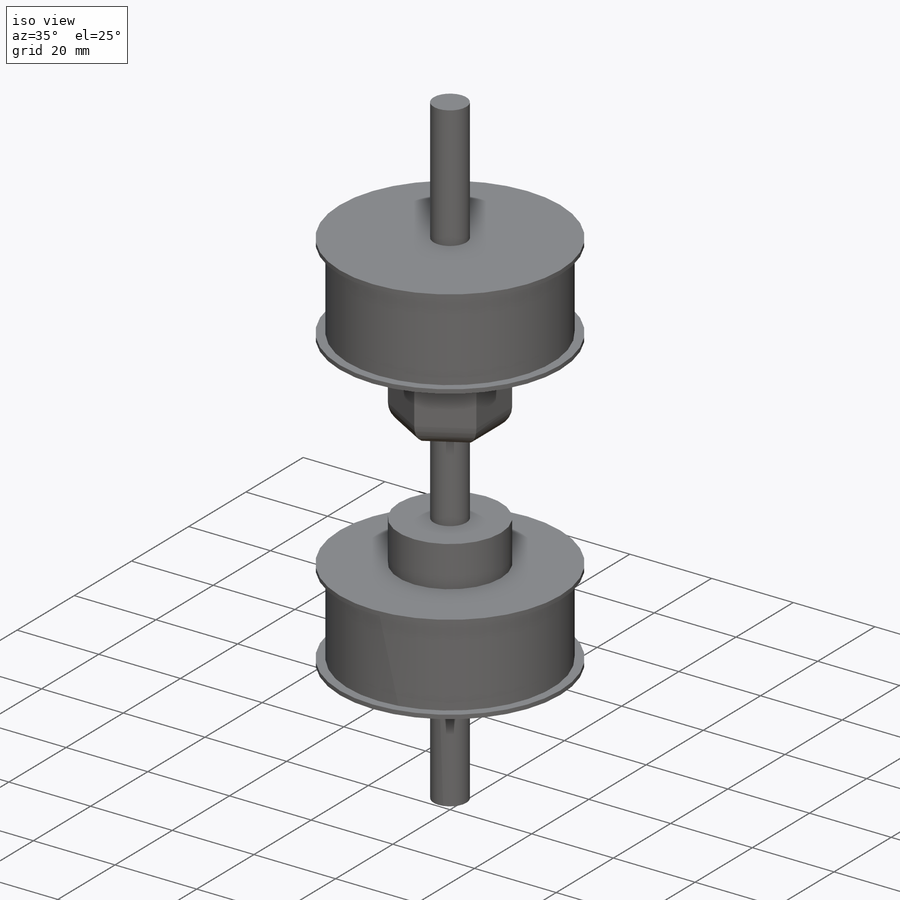
[diagram: iso view]
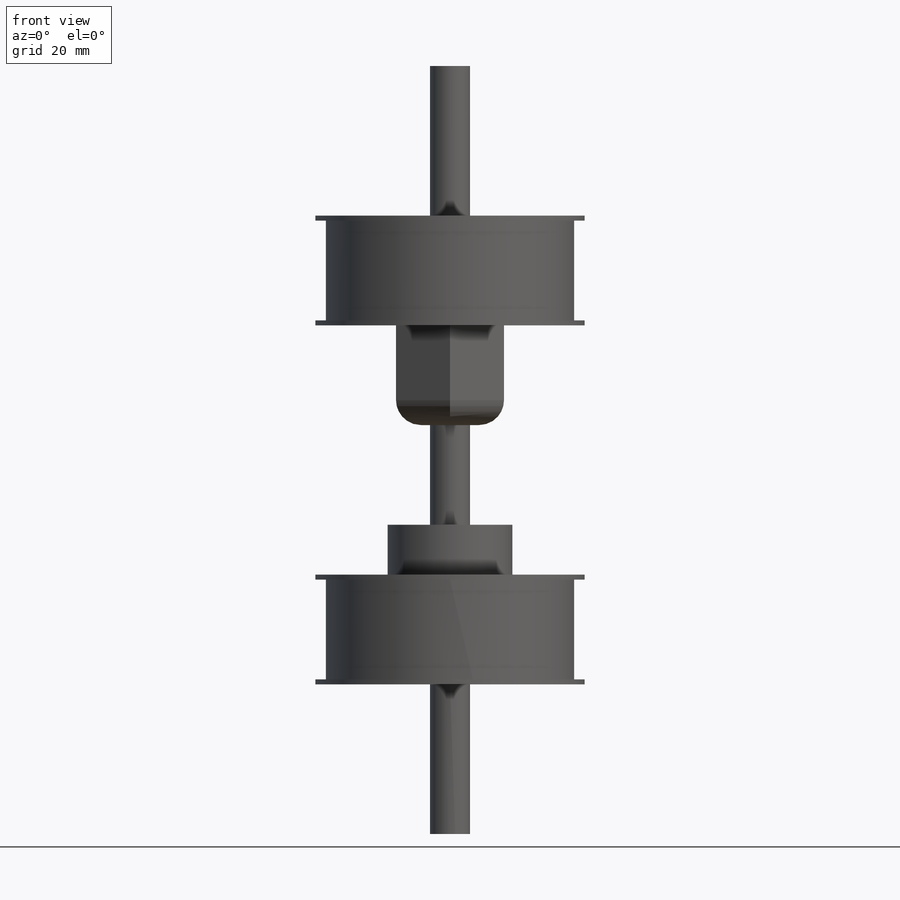
[diagram: front view]
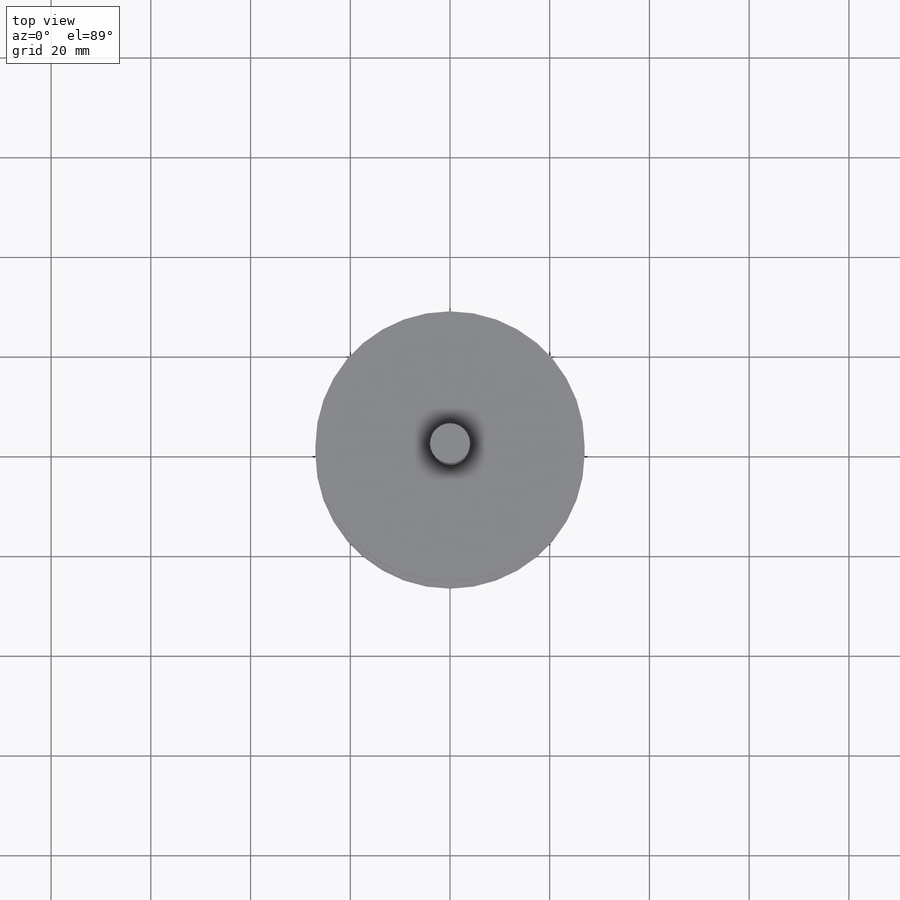
[diagram: top view]
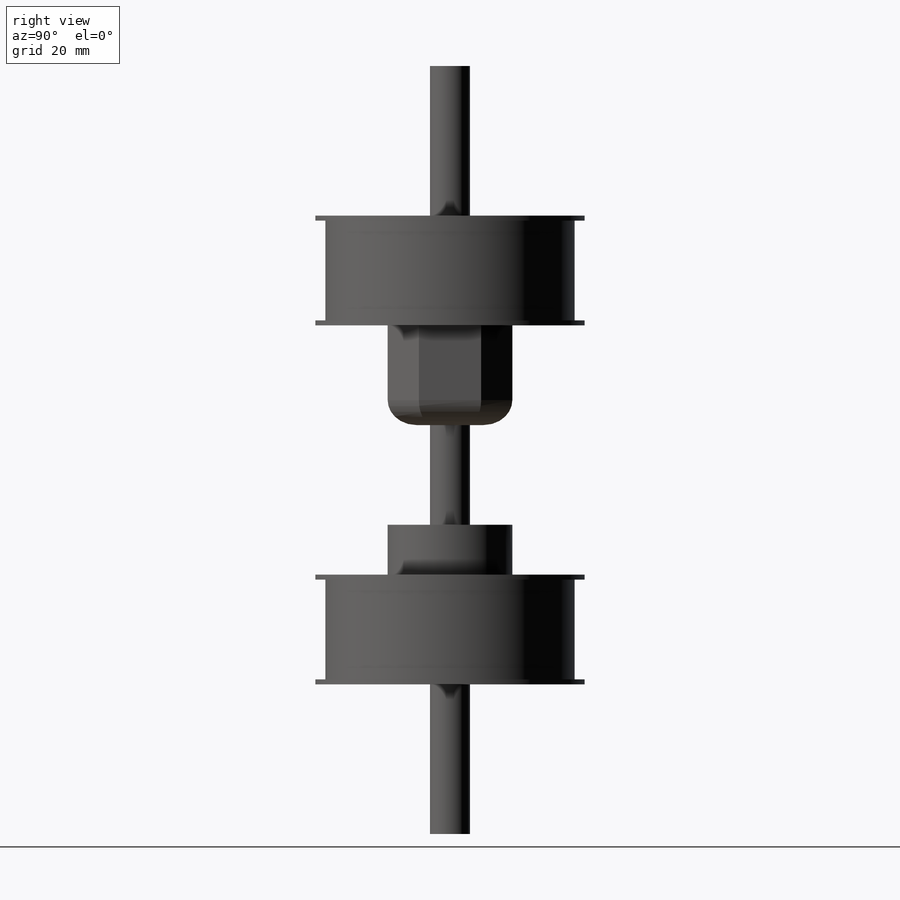
[diagram: right view]
SOLIDWORKS PART (.sldprt)
format: sldprt  version: not decoded by parser v0  size: 225,792 bytes
history: native  units: mm
features: sketch x11, extrude x11, plane x10, material x1, fillet x1 (+12 scaffold rows collapsed)
feature tree (46):
  scaffold x12  (default folders/planes/origin — collapsed)
  material  "Material <not specified>"
  sketch  "Sketch2"  dims[D1=25.0mm]
  extrude  "Boss-Extrude1"  Depth=1mm
  plane  "Plane1"  Offset=0mm
  sketch  "Sketch3"  dims[D1=4.0mm]
  extrude  "Boss-Extrude2"  Depth=10mm
  plane  "Plane2"  Offset=0mm
  sketch  "Sketch4"  dims[D1=~7.227064mm]
  extrude  "Boss-Extrude3"  Depth=20mm
  plane  "Plane3"  Offset=0mm
  sketch  "Sketch5"  dims[D1=~27.82816mm]
  extrude  "Boss-Extrude4"  Depth=20mm
  fillet  "Fillet1"  Radius=5mm
  plane  "Plane4"  Offset=0mm
  sketch  "Sketch6"  dims[D1=54.0mm]
  extrude  "Boss-Extrude5"  Depth=1mm
  plane  "Plane5"  Offset=0mm
  sketch  "Sketch7"  dims[D1=~74.277706mm]
  extrude  "Boss-Extrude6"  Depth=20mm
  plane  "Plane6"  Offset=0mm
  sketch  "Sketch8"  dims[D1=26.0mm]
  extrude  "Boss-Extrude7"  Depth=1mm
  plane  "Plane7"  Offset=0mm
  sketch  "Sketch9"  dims[D1=~58.368274mm]
  extrude  "Boss-Extrude8"  Depth=30mm
  plane  "Plane8"  Offset=0mm
  sketch  "Sketch10"  dims[D1=~55.367189mm]
  extrude  "Boss-Extrude9"  Depth=20mm
  plane  "Plane9"  Offset=0mm
  sketch  "Sketch11"  dims[D1=~99.540743mm]
  extrude  "Boss-Extrude10"  Depth=1mm
  plane  "Plane10"  Offset=0mm
  sketch  "Sketch12"  dims[D1=~45.686256mm]
  extrude  "Boss-Extrude11"  Depth=30mm
decode coverage: 23 of 23 modeling features carry decoded parameters
note: ~ marks probable driven/reference dimensions
note: suppression state not decoded; provenance and decode notes live in map.json
